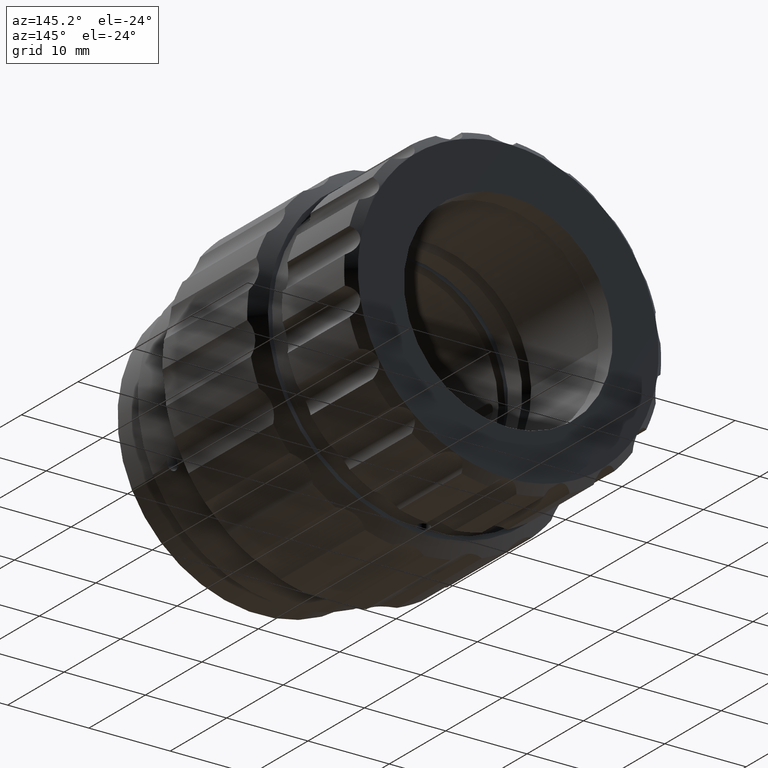
[diagram: clean part render]
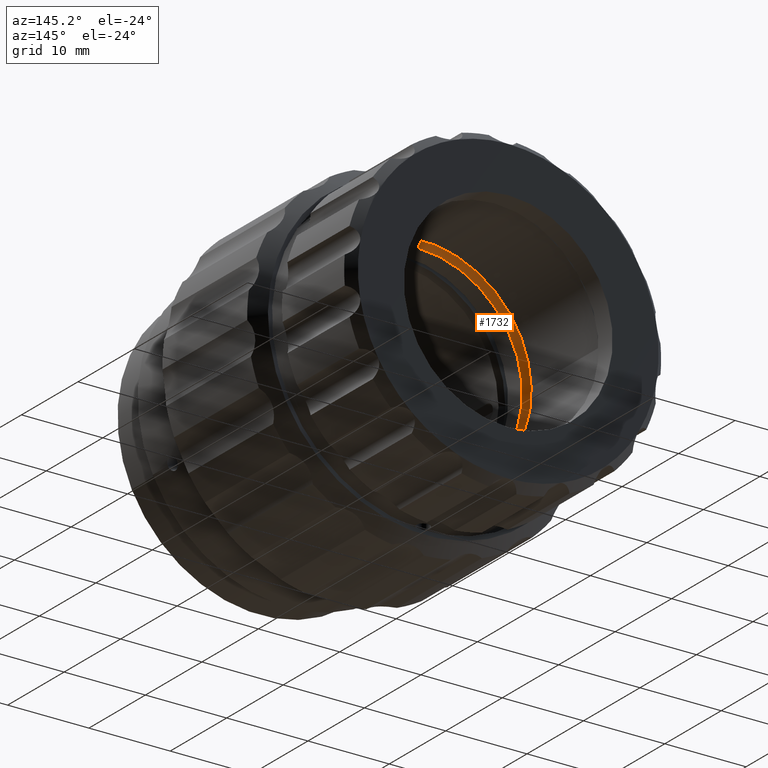
[diagram: same view with one face highlighted and labeled with its STEP entity id]
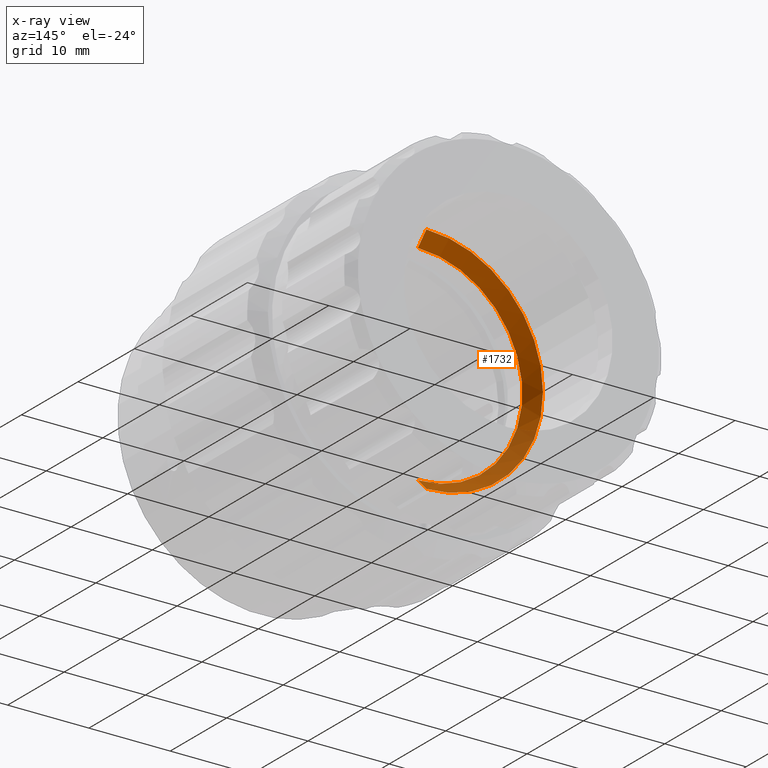
[diagram: x-ray of the same camera — body ghosted, the highlighted face saturated]
A machine part, auxiliary view. The second image highlights one B-rep face of the part: STEP entity #1732.
The next image is the same camera in x-ray: the body ghosted, the highlighted face saturated — about 27% of this face is hidden behind the body in this view.
In plain terms, the highlighted conical surface has half-angle 45 deg.
Its self-contained STEP definition (entity closure, byte-faithful):
#393 = VECTOR ( 'NONE', #5654, 1000.000000000000000 ) ;
#411 = CARTESIAN_POINT ( 'NONE',  ( 5.971701014312827738, -6.048755687005431092, 59.25330644533107005 ) ) ;
#535 = EDGE_CURVE ( 'NONE', #7915, #4008, #6751, .T. ) ;
#701 = CIRCLE ( 'NONE', #7658, 12.84999999999999964 ) ;
#753 = VERTEX_POINT ( 'NONE', #6653 ) ;
#1019 = EDGE_LOOP ( 'NONE', ( #2694, #8894, #6486, #6012 ) ) ;
#1284 = DIRECTION ( 'NONE',  ( -0.000000000000000000, -1.000000000000000000, -0.000000000000000000 ) ) ;
#1732 = ADVANCED_FACE ( 'NONE', ( #8890 ), #5139, .F. ) ;
#1792 = CARTESIAN_POINT ( 'NONE',  ( 5.971701014312829514, -7.548755687005425763, 32.05330644533106721 ) ) ;
#1867 = VERTEX_POINT ( 'NONE', #8517 ) ;
#2327 = CARTESIAN_POINT ( 'NONE',  ( 5.971701014312827738, -6.048755687005431092, 44.90330644533106863 ) ) ;
#2694 = ORIENTED_EDGE ( 'NONE', *, *, #2932, .T. ) ;
#2932 = EDGE_CURVE ( 'NONE', #1867, #753, #701, .T. ) ;
#3907 = DIRECTION ( 'NONE',  ( 0.000000000000000000, 0.000000000000000000, -1.000000000000000000 ) ) ;
#3980 = EDGE_CURVE ( 'NONE', #1867, #7915, #6864, .T. ) ;
#4008 = VERTEX_POINT ( 'NONE', #7054 ) ;
#4083 = LINE ( 'NONE', #1792, #393 ) ;
#4366 = DIRECTION ( 'NONE',  ( 0.000000000000000000, 0.000000000000000000, 1.000000000000000000 ) ) ;
#4423 = VECTOR ( 'NONE', #9981, 1000.000000000000000 ) ;
#5013 = DIRECTION ( 'NONE',  ( 0.000000000000000000, 1.000000000000000000, 0.000000000000000000 ) ) ;
#5139 = CONICAL_SURFACE ( 'NONE', #7726, 12.84999999999999964, 0.7853981633974500554 ) ;
#5654 = DIRECTION ( 'NONE',  ( 8.659560562354948882E-17, 0.7071067811865463515, -0.7071067811865487940 ) ) ;
#5940 = AXIS2_PLACEMENT_3D ( 'NONE', #2327, #6058, #3907 ) ;
#6012 = ORIENTED_EDGE ( 'NONE', *, *, #3980, .F. ) ;
#6058 = DIRECTION ( 'NONE',  ( -0.000000000000000000, -1.000000000000000000, -0.000000000000000000 ) ) ;
#6105 = DIRECTION ( 'NONE',  ( 0.000000000000000000, 0.000000000000000000, -1.000000000000000000 ) ) ;
#6148 = CARTESIAN_POINT ( 'NONE',  ( 5.971701014312827738, -7.548755687005425763, 44.90330644533106863 ) ) ;
#6486 = ORIENTED_EDGE ( 'NONE', *, *, #535, .F. ) ;
#6653 = CARTESIAN_POINT ( 'NONE',  ( 5.971701014312827738, -7.548755687005425763, 32.05330644533106721 ) ) ;
#6751 = CIRCLE ( 'NONE', #5940, 14.35000000000000142 ) ;
#6864 = LINE ( 'NONE', #8285, #4423 ) ;
#7054 = CARTESIAN_POINT ( 'NONE',  ( 5.971701014312829514, -6.048755687005431092, 30.55330644533106721 ) ) ;
#7658 = AXIS2_PLACEMENT_3D ( 'NONE', #6148, #1284, #6105 ) ;
#7726 = AXIS2_PLACEMENT_3D ( 'NONE', #8221, #5013, #4366 ) ;
#7915 = VERTEX_POINT ( 'NONE', #411 ) ;
#8221 = CARTESIAN_POINT ( 'NONE',  ( 5.971701014312827738, -7.548755687005425763, 44.90330644533106863 ) ) ;
#8285 = CARTESIAN_POINT ( 'NONE',  ( 5.971701014312827738, -7.548755687005425763, 57.75330644533107005 ) ) ;
#8511 = EDGE_CURVE ( 'NONE', #753, #4008, #4083, .T. ) ;
#8517 = CARTESIAN_POINT ( 'NONE',  ( 5.971701014312829514, -7.548755687005425763, 57.75330644533107005 ) ) ;
#8890 = FACE_OUTER_BOUND ( 'NONE', #1019, .T. ) ;
#8894 = ORIENTED_EDGE ( 'NONE', *, *, #8511, .T. ) ;
#9981 = DIRECTION ( 'NONE',  ( 0.000000000000000000, 0.7071067811865463515, 0.7071067811865487940 ) ) ;